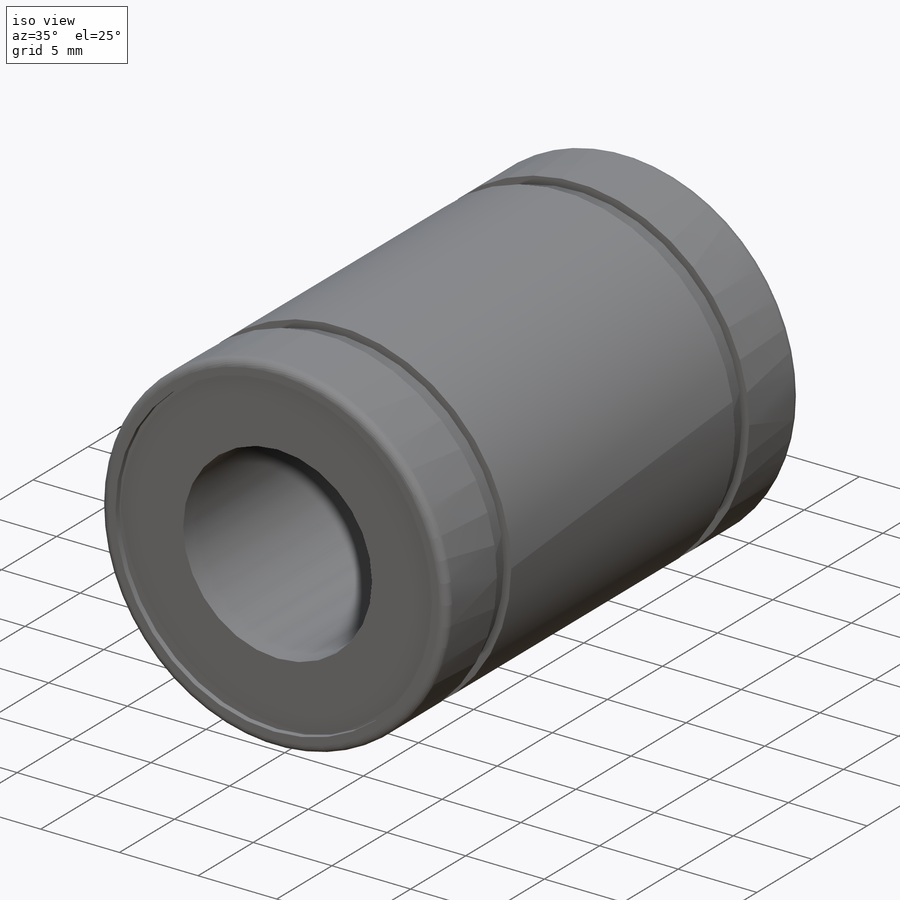
[diagram: iso view]
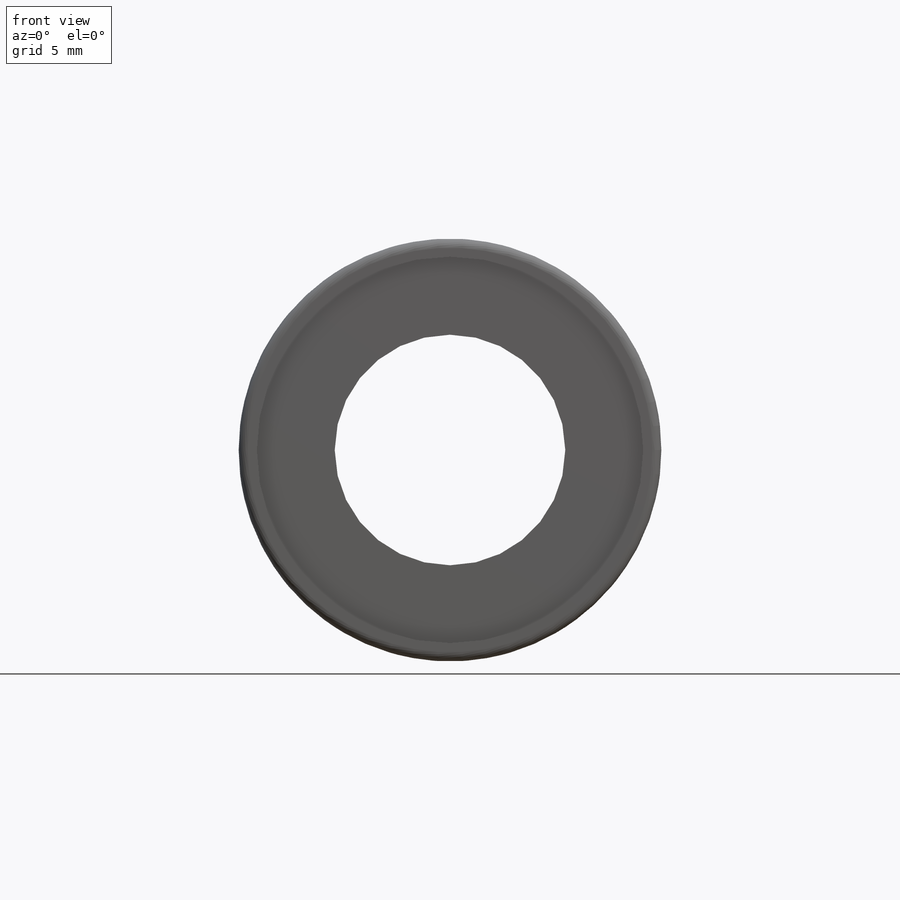
[diagram: front view]
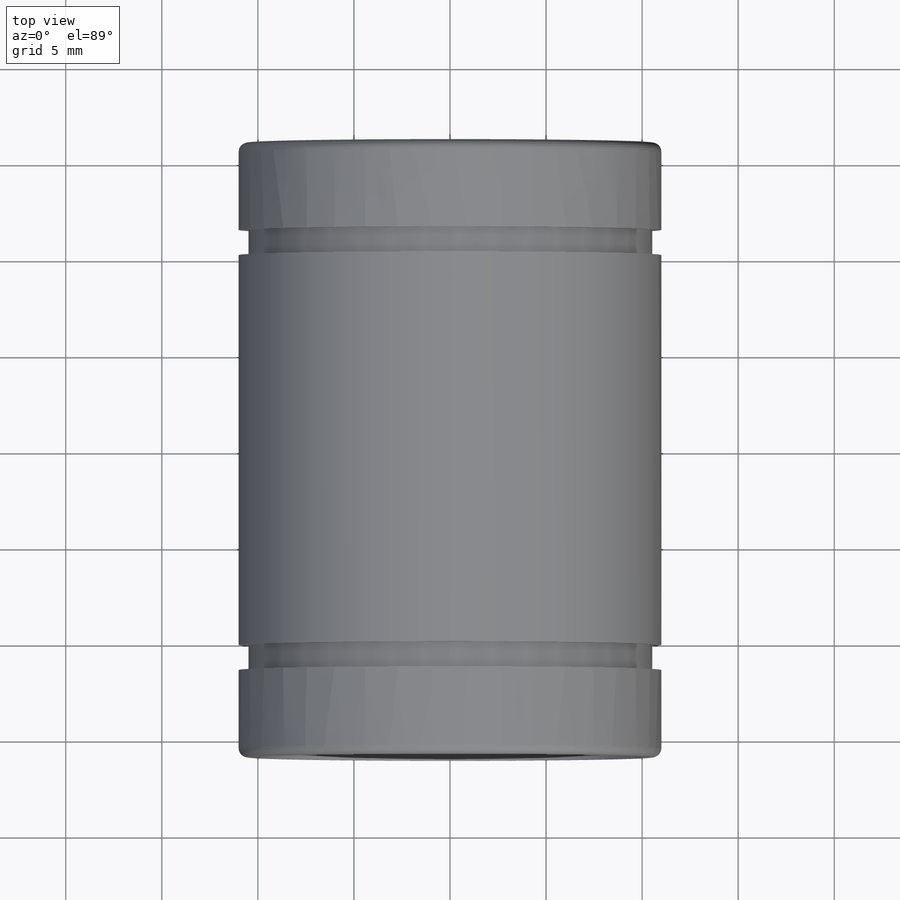
[diagram: top view]
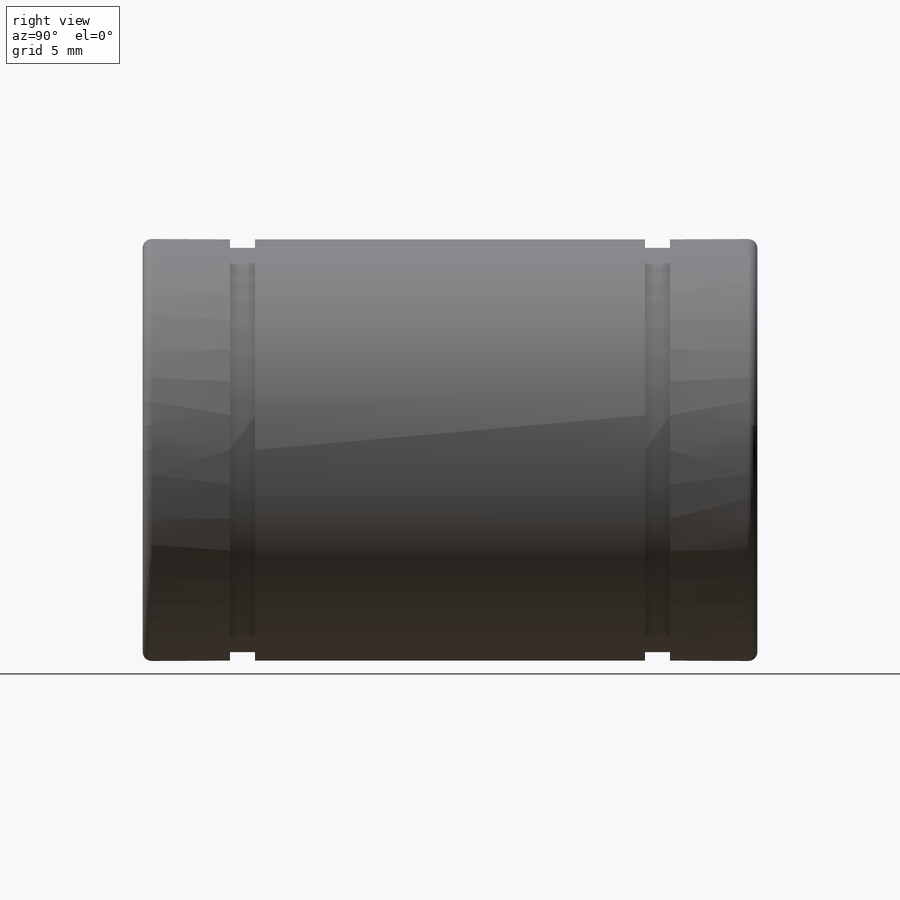
[diagram: right view]
SOLIDWORKS PART (.sldprt)
format: sldprt  version: not decoded by parser v0  size: 258,560 bytes
history: native  units: mm
features: sketch x4, cut_revolve x2, material x1, revolve x1, pattern_circular x1 (+15 scaffold rows collapsed)
feature tree (24):
  scaffold x15  (default folders/planes/origin — collapsed)
  material  "Material <not specified>"
  sketch  "Support-Right"  dims[c1.Width-Track=1.3mm c1.Dist-Track=24.6mm c1.Diam-Shaft=~112.511343mm c2.Width-Track=1.3mm c2.Dist-Track=22.9mm c2.Length-Ball-Bearing=32.0mm c2.Diam-Shaft=12.0mm c2.Diam-Ball-Bearing=22.0mm c2.D1=~2.426873mm c3.D1=5.0deg c3.D2=1.3mm c4.D2=20.0deg]
  sketch  "Sketch2"
  revolve  "Body"  Angle=360deg
  sketch  "Sketch3"
  cut_revolve  "Track"  Angle=360deg
  sketch  "Sketch4"
  cut_revolve  "Cosmetic-Cut"  Angle=20deg
  pattern_circular  "Pattern-Cosmetic-Cut"  Count=4 Angle=360deg Num-Ball-Rows=4
decode coverage: 5 of 8 modeling features carry decoded parameters
note: ~ marks probable driven/reference dimensions
note: suppression state not decoded; provenance and decode notes live in map.json
